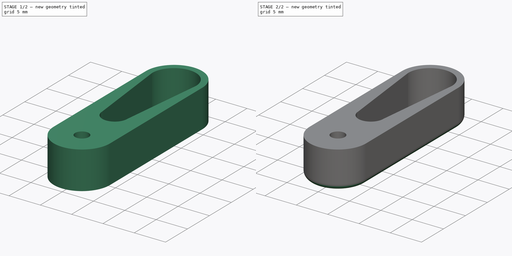
[diagram: build sequence overview — one tinted view per stage of 2, left to right]
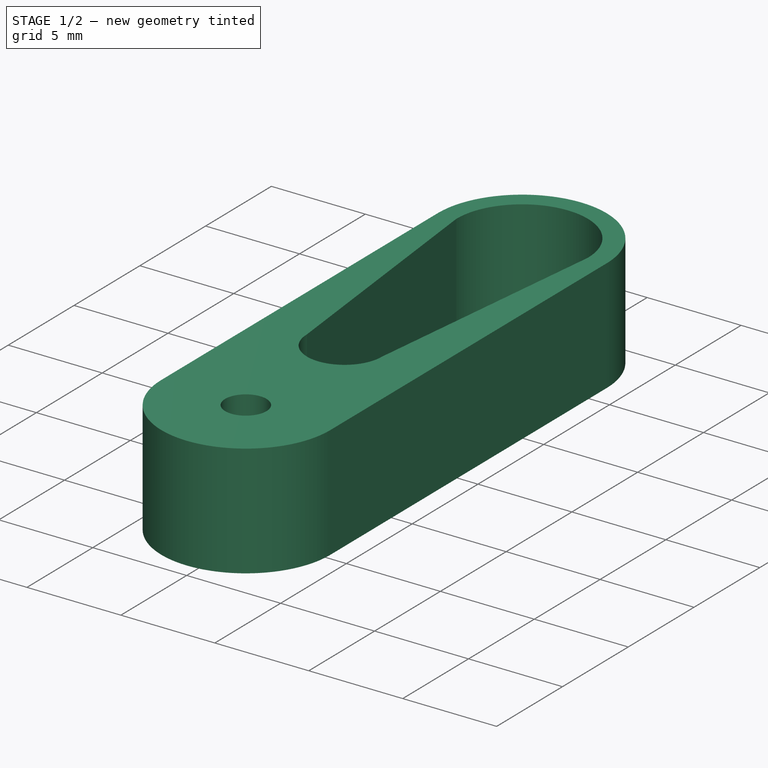
[diagram: stage 1 of 2 — iso view after this stage's code; geometry added in this stage tinted green]
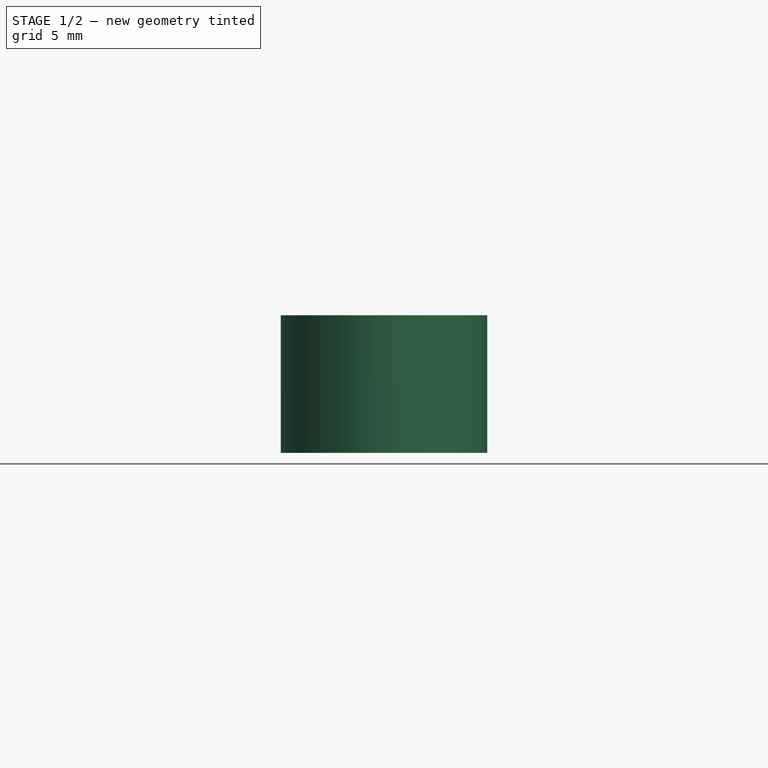
[diagram: stage 1 of 2 — front view after this stage's code; geometry added in this stage tinted green]
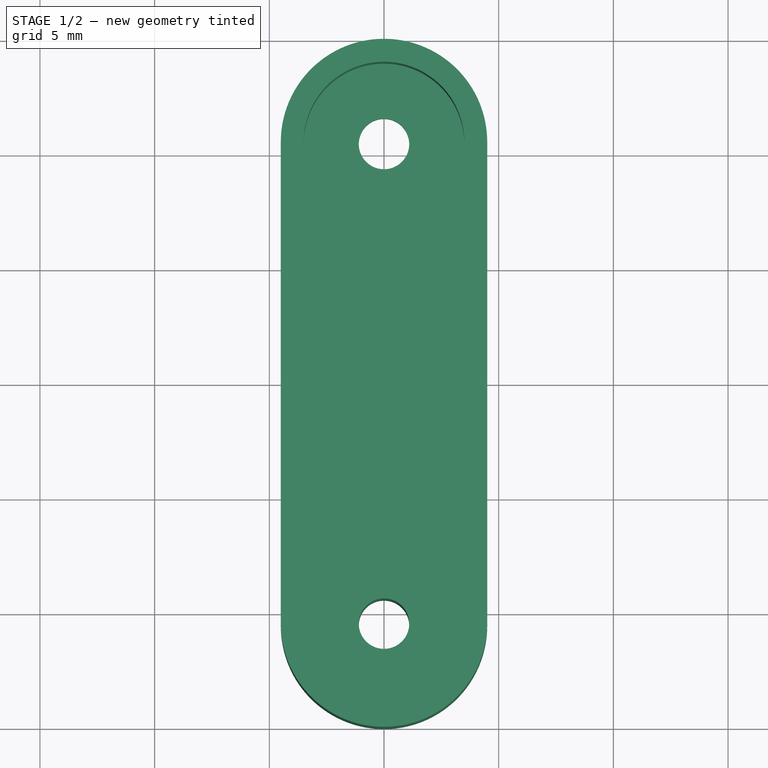
[diagram: stage 1 of 2 — top view after this stage's code; geometry added in this stage tinted green]
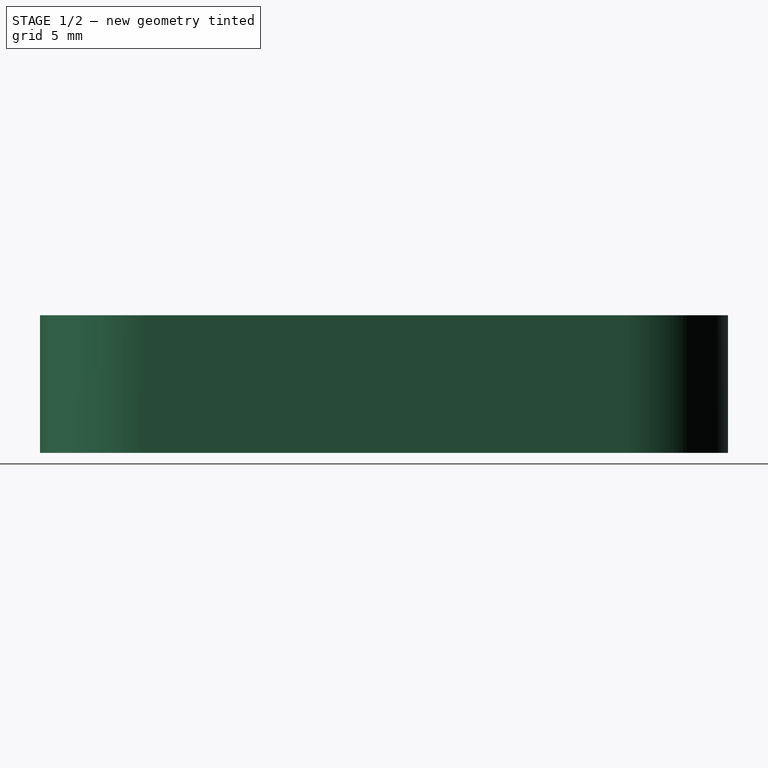
[diagram: stage 1 of 2 — right view after this stage's code; geometry added in this stage tinted green]
FCSTD DOCUMENT  (FreeCAD 0.20R29177 +426 (Git))
Label: neckHornSmallHollow2
License: All rights reserved
LicenseURL: http://en.wikipedia.org/wiki/All_rights_reserved
objects: Sketcher::SketchObject×2, PartDesign::Pad×1, PartDesign::Pocket×1, PartDesign::Fillet×1, PartDesign::Body×1
note: 9 computed .brp shape members not serialized (recipe doc carries the construction recipe); baked Part::Feature solids carry a one-line shape summary decoded from their .brp

FEATURE [Sketcher::SketchObject] Sketch
  FullyConstrained = true
  MapMode = 5
  Support = -> [XY_Plane]
  sketch-geometry (8):
    g0: ArcOfCircle CenterX=-4e-16 CenterY=10.5 CenterZ=0 NormalX=0 NormalY=0 NormalZ=1 AngleXU=0 Radius=4.5 StartAngle=-1.15e-14 EndAngle=3.14159
    g1: ArcOfCircle CenterX=4e-16 CenterY=-10.5 CenterZ=0 NormalX=0 NormalY=0 NormalZ=1 AngleXU=0 Radius=4.5 StartAngle=3.14159 EndAngle=6.28319
    g2: LineSegment StartX=-4.5 StartY=10.5 StartZ=0 EndX=-4.5 EndY=-10.5 EndZ=0
    g3: LineSegment StartX=4.5 StartY=-10.5 StartZ=0 EndX=4.5 EndY=10.5 EndZ=0
    g4: GeomPoint X=0 Y=15 Z=0
    g5: GeomPoint X=0 Y=-15 Z=0
    g6: Circle CenterX=-4e-16 CenterY=10.5 CenterZ=0 NormalX=0 NormalY=0 NormalZ=1 AngleXU=0 Radius=1.1
    g7: Circle CenterX=4e-16 CenterY=-10.5 CenterZ=0 NormalX=0 NormalY=0 NormalZ=1 AngleXU=0 Radius=1.1
  constraints (17):
    c: Tangent(g0,g2) = -1.5708
    c: Tangent(g2,g1) = -1.5708
    c: Tangent(g1,g3) = -1.5708
    c: Tangent(g3,g0) = -1.5708
    c: Equal(g0,g1)
    c: Vertical(g2)
    c: Symmetric(g1,g0,g-1)
    c: DistanceX(g0,g0) = 9
    c: PointOnObject(g4,g0)
    c: PointOnObject(g5,g1)
    c: DistanceY(g5,g4) = 30
    c: Coincident(g6,g0)
    c: Coincident(g7,g1)
    c: Equal(g6,g7)
    c: Diameter(g6) = 2.2
    c: PointOnObject(g4,g-2)
    c: Vertical(g5,g4)
FEATURE [PartDesign::Pad] Pad
  Direction = (0,0,1)
  Length = 6
  Length2 = 10
  Profile = -> Sketch
  ReferenceAxis = -> Sketch [N_Axis]
  Type = 0
FEATURE [Sketcher::SketchObject] Sketch001
  ExternalGeometry = -> [Pad]
  FullyConstrained = true
  MapMode = 5
  Placement = pos=(0,0,6) rot=(0,0,1;0rad)
  Support = -> [Pad]
  sketch-geometry (6):
    g0: ArcOfCircle CenterX=-4e-16 CenterY=10.5 CenterZ=0 NormalX=0 NormalY=0 NormalZ=1 AngleXU=0 Radius=3.5 StartAngle=1e-16 EndAngle=3.14159
    g1: ArcOfCircle CenterX=0 CenterY=-3 CenterZ=0 NormalX=0 NormalY=0 NormalZ=1 AngleXU=0 Radius=2 StartAngle=3.14159 EndAngle=6.28319
    g2: LineSegment StartX=-3.5 StartY=10.5 StartZ=0 EndX=-2 EndY=-3 EndZ=0
    g3: LineSegment StartX=3.5 StartY=10.5 StartZ=0 EndX=2 EndY=-3 EndZ=0
    g4: GeomPoint X=0 Y=14 Z=0
    g5: GeomPoint X=0 Y=-5 Z=0
  constraints (17):
    c: PointOnObject(g1,g-2)
    c: Coincident(g2,g0)
    c: Coincident(g2,g1)
    c: Coincident(g3,g0)
    c: Coincident(g3,g1)
    c: Horizontal(g0,g0)
    c: Horizontal(g1,g1)
    c: Horizontal(g1,g1)
    c: DistanceX(g0,g0) = 7
    c: DistanceX(g1,g1) = 4
    c: Horizontal(g0,g0)
    c: Coincident(g0,g-3)
    c: PointOnObject(g4,g0)
    c: PointOnObject(g5,g1)
    c: Vertical(g5,g4)
    c: DistanceY(g5,g4) = 19
    c: PointOnObject(g5,g-2)
FEATURE [PartDesign::Pocket] Pocket
  BaseFeature = -> Pad
  Direction = (0,0,-1)
  Length = 5
  Length2 = 5
  Profile = -> Sketch001
  ReferenceAxis = -> Sketch001 [N_Axis]
  Type = 0
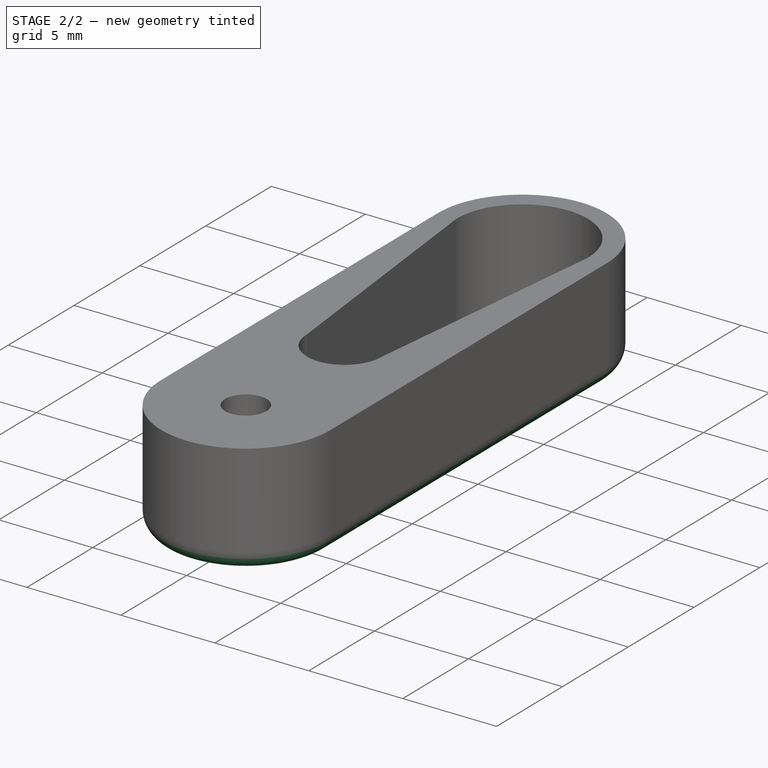
[diagram: stage 2 of 2 — iso view after this stage's code; geometry added in this stage tinted green]
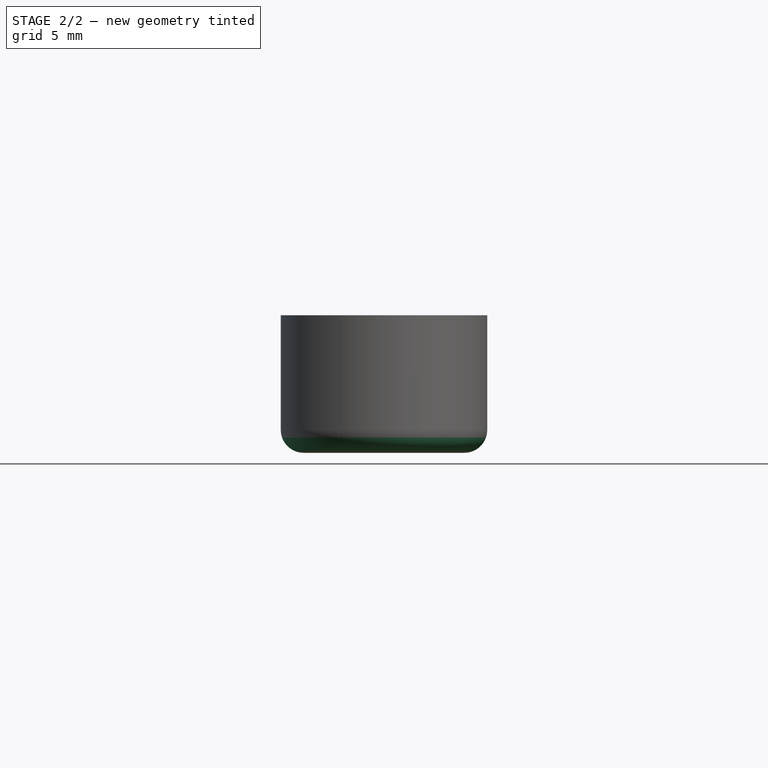
[diagram: stage 2 of 2 — front view after this stage's code; geometry added in this stage tinted green]
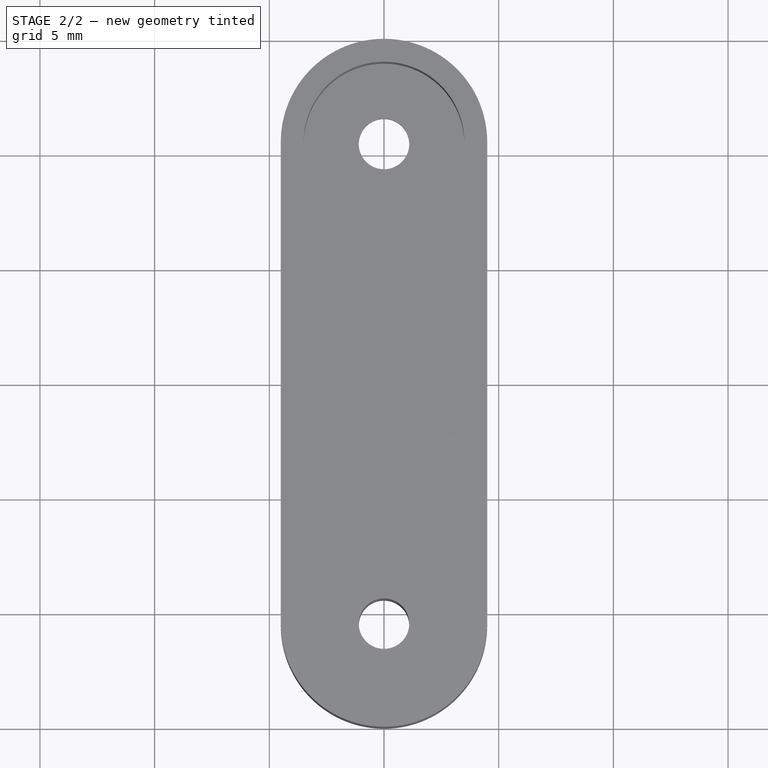
[diagram: stage 2 of 2 — top view after this stage's code; geometry added in this stage tinted green]
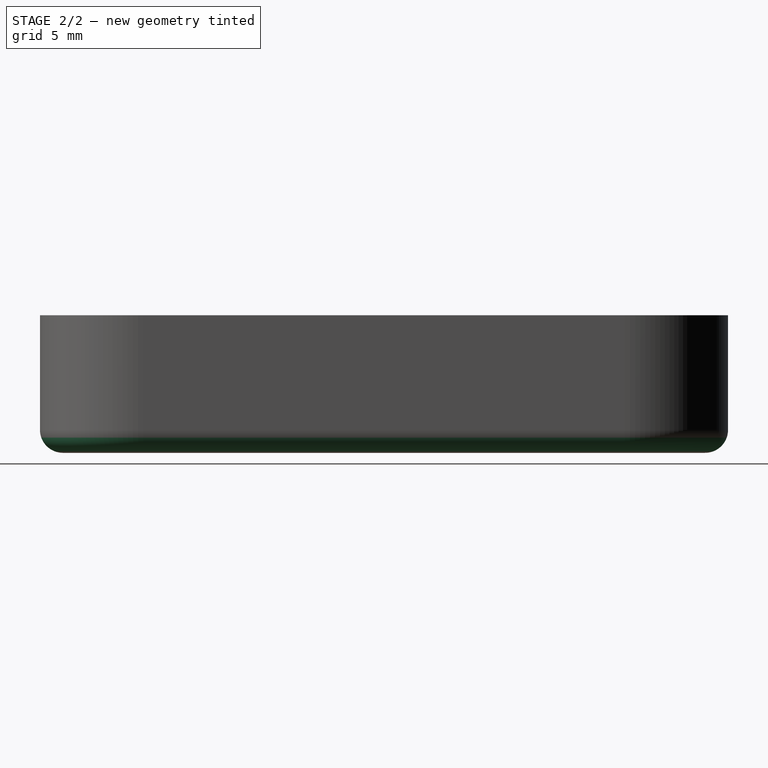
[diagram: stage 2 of 2 — right view after this stage's code; geometry added in this stage tinted green]
FEATURE [PartDesign::Fillet] Fillet
  Base = -> Pocket [Edge6]
  BaseFeature = -> Pocket
  Radius = 1
  SupportTransform = false
  UseAllEdges = false
FEATURE [PartDesign::Body] Body
  Group = -> [Sketch,Pad,Sketch001,Pocket,Fillet]
  Origin = -> Origin
  Tip = -> Fillet
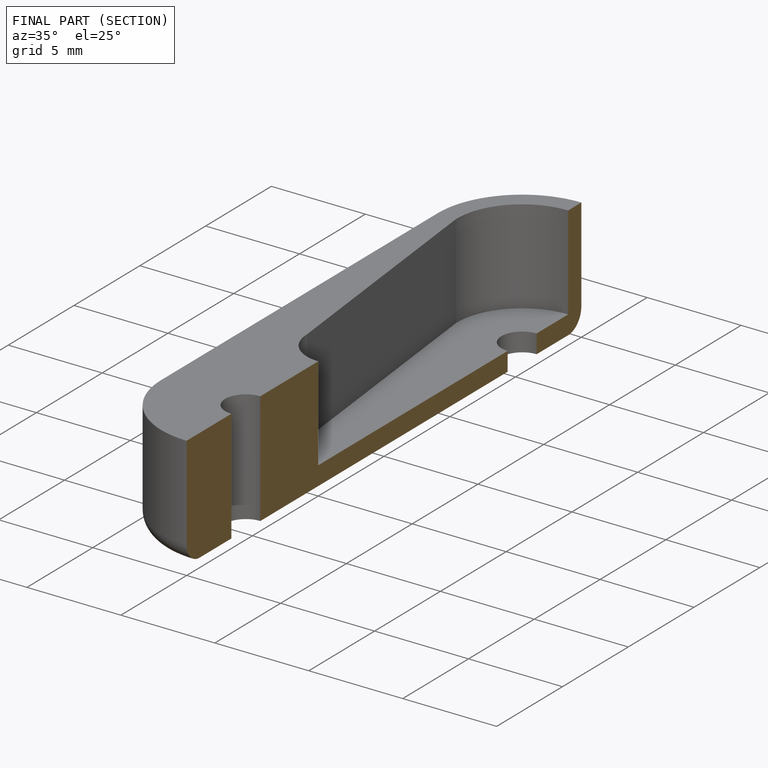
[diagram: finished part — half-section view (interior)]
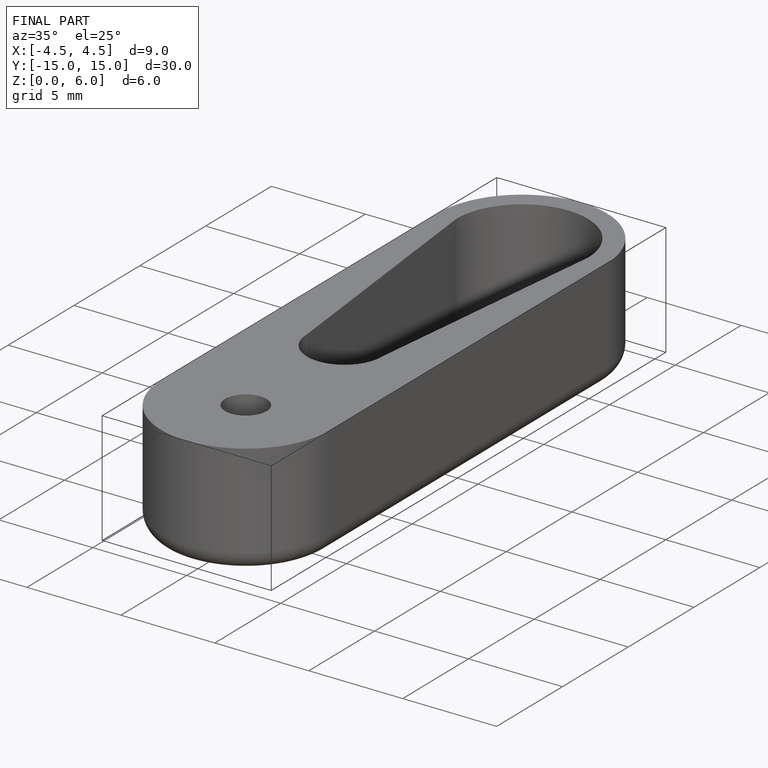
[diagram: finished part — iso view with bounding-box wireframe]
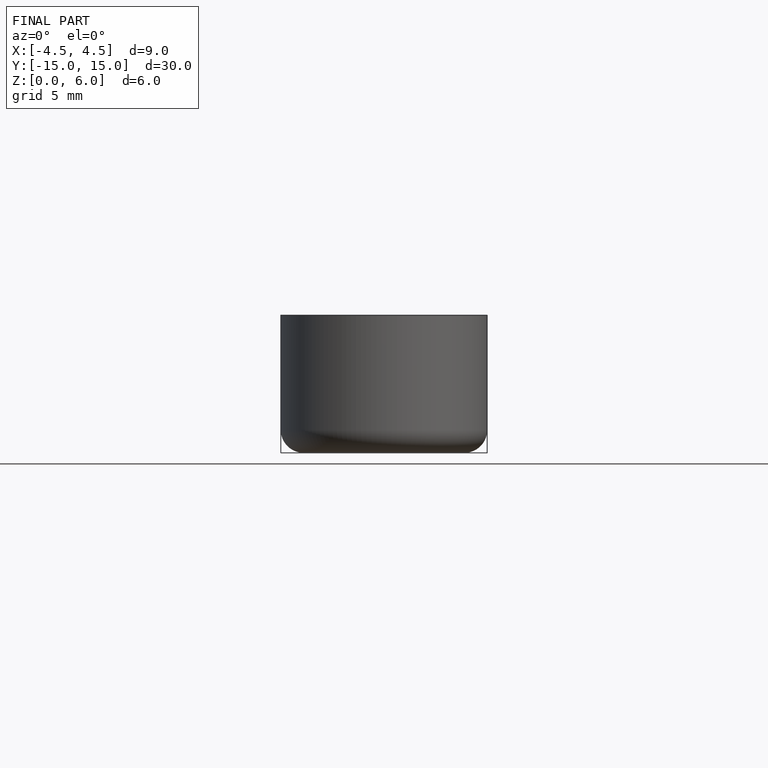
[diagram: finished part — front view with bounding-box wireframe]
